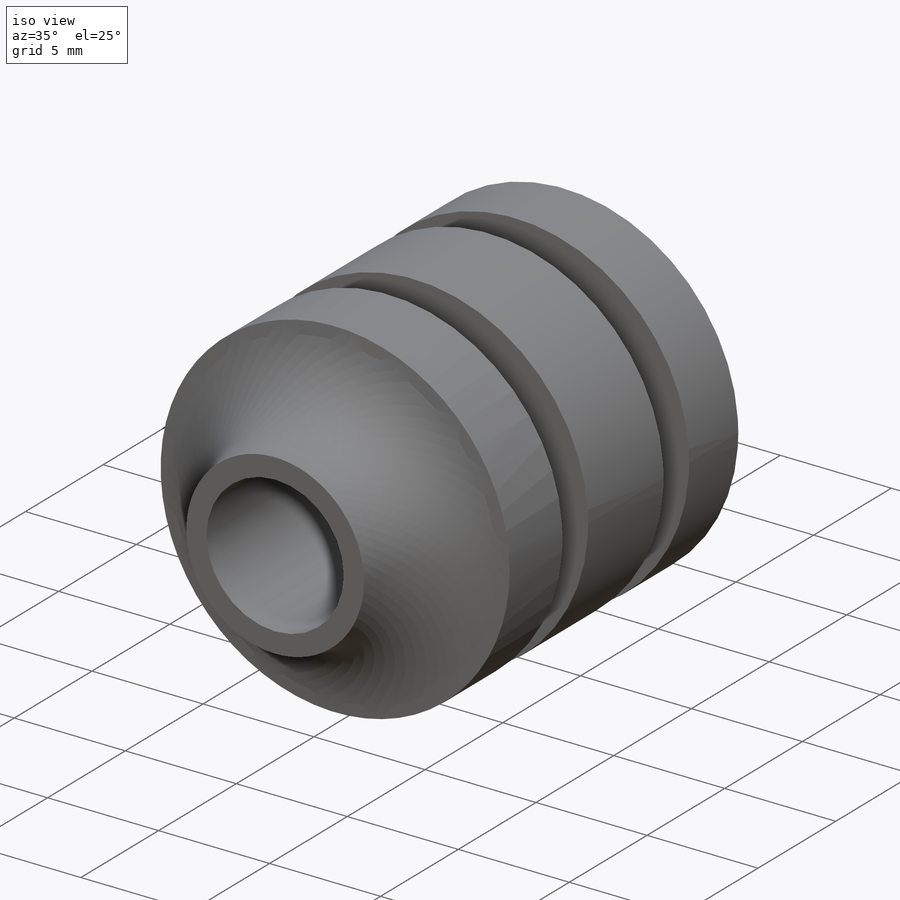
[diagram: iso view]
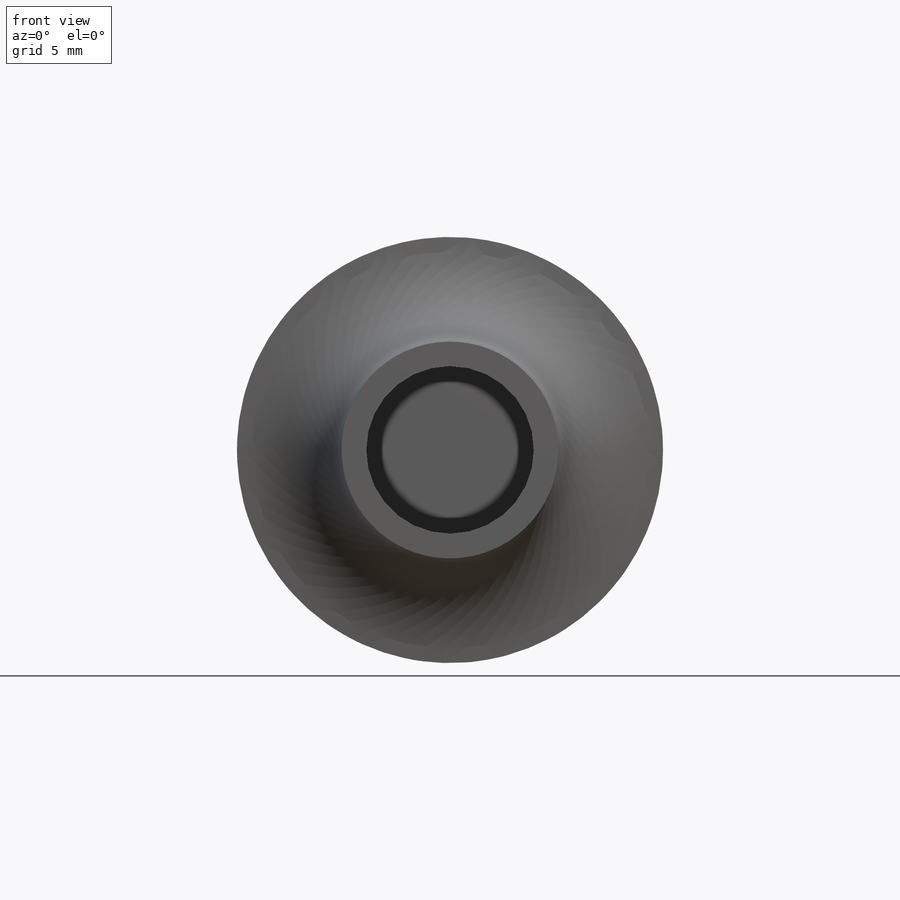
[diagram: front view]
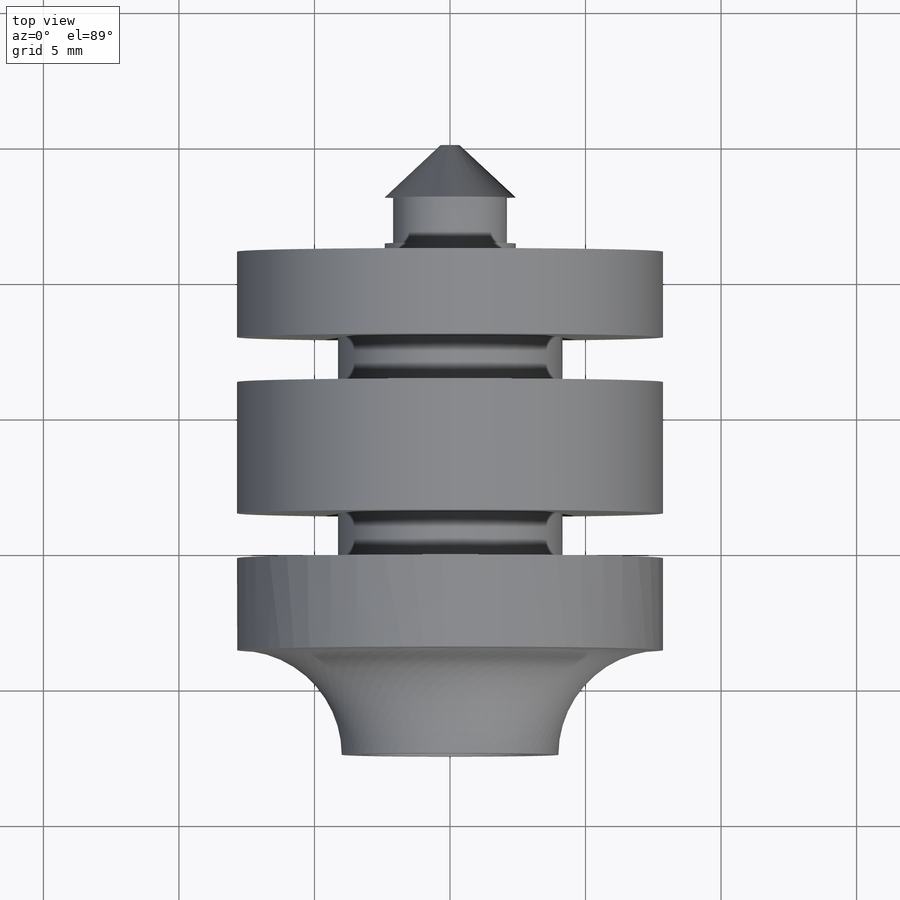
[diagram: top view]
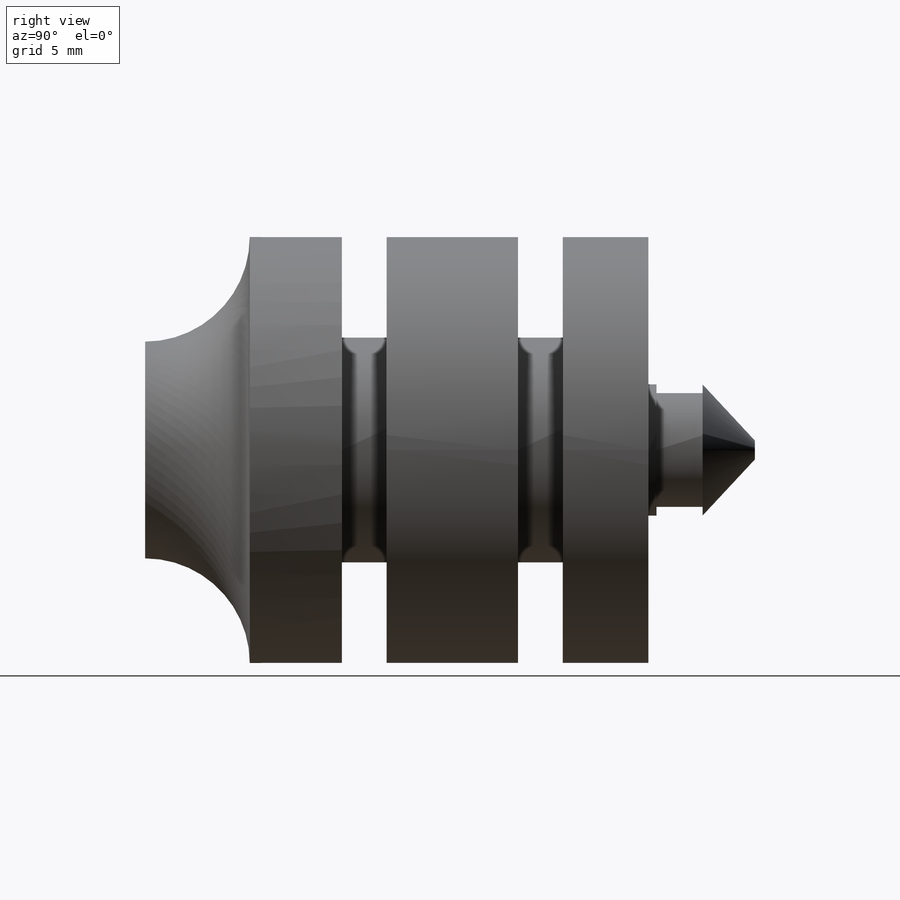
[diagram: right view]
SOLIDWORKS PART (.sldprt)
format: sldprt  version: not decoded by parser v0  size: 267,264 bytes
history: native  units: mm
features: sketch x4, cut_extrude x2, material x1, extrude x1, fillet x1, cut_revolve x1 (+11 scaffold rows collapsed)
feature tree (21):
  scaffold x11  (default folders/planes/origin — collapsed)
  material  "Material <not specified>"
  sketch  "Sketch1"  dims[D1=~9.282858mm]
  extrude  "Boss-Extrude1"  Depth=22.5mm
  sketch  "Sketch2"  dims[D1=~1.664095mm]
  cut_extrude  "Cut-Extrude1"  Depth=3.86mm
  fillet  "Fillet1"  Radius=3.86mm
  sketch  "Sketch3"  dims[D1=3.4mm D2=1.65mm D3=4.85mm D4=1.65mm D5=3.16mm D6=4.15mm D7=0.3mm D8=2.0mm D9=2.425mm D10=2.1mm D11=0.35mm]
  cut_revolve  "Cut-Revolve1"  Angle=360deg
  sketch  "Sketch4"  dims[D1=~1.988608mm]
  cut_extrude  "Cut-Extrude2"  Depth=17.86mm
decode coverage: 9 of 9 modeling features carry decoded parameters
note: ~ marks probable driven/reference dimensions
note: suppression state not decoded; provenance and decode notes live in map.json
